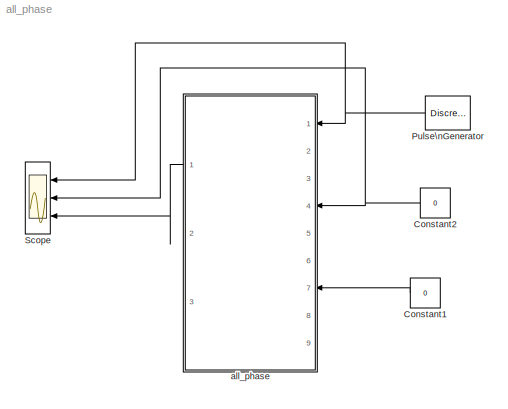
MODEL all_phase
KIND model
BLOCK [Constant] Constant1
  SID = 1
  Value = 0
BLOCK [Constant] Constant2
  SID = 2
  Value = 0
BLOCK [DiscretePulseGenerator] Pulse\nGenerator
  Amplitude = 100
  Period = 0.2
  Ports = [0, 1]
  PulseType = Time based
  PulseWidth = 50
  SID = 3
BLOCK [Scope] Scope
  Floating = off
  NumInputPorts = 3
  Ports = [3]
  SID = 4
  ScopeSpecificationString = C++SS(StrPVP('Location','[5, 60, 1029, 771]'),StrPVP('Open','off'),StrPVP('ZoomMode','xonly'),MxPVP('AxesTitles',54,'struct(''axes1'',''%<SignalLabel>'',''axes2'',''%<SignalLabel>'',''axes3'',''%<SignalLabel>'')'),StrPVP('YMin','-5~-5~-5'),StrPVP('YMax','5~5~5'),StrPVP('DataFormat','StructureWithTime'),StrPVP('LimitDataPoints','on'),StrPVP('Decimation','1'),StrPVP('BlockParamSampleInput','off'))
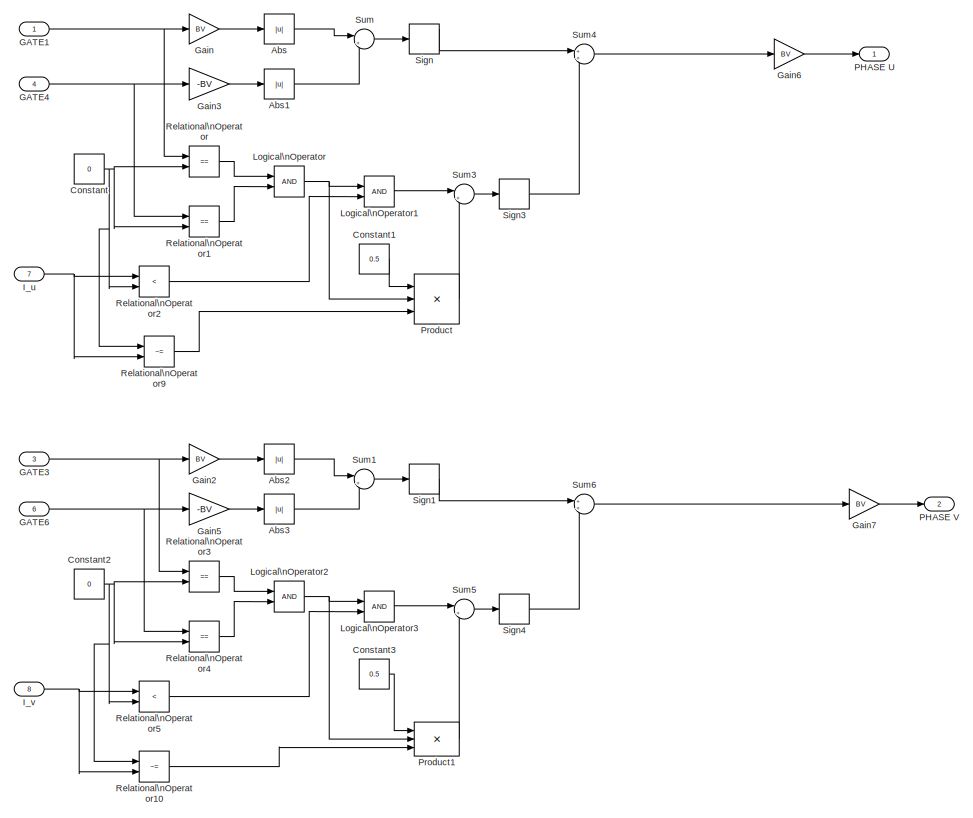
[diagram: all_phase - part 1/2, full width, middle band]
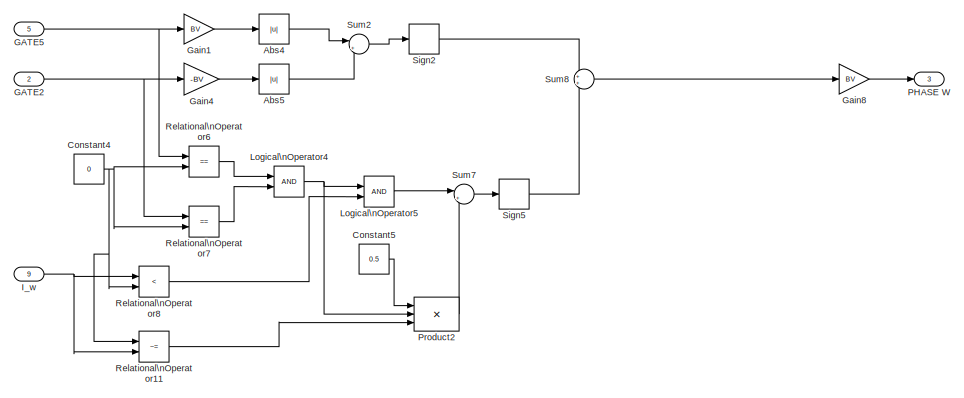
[diagram: all_phase - part 2/2, full width, bottom band]
BLOCK [SubSystem] all_phase
  Ports = [9, 3]
  RequestExecContextInheritance = off
  SID = 5
BLOCK [Abs] all_phase/Abs
  SID = 15
BLOCK [Abs] all_phase/Abs1
  SID = 16
BLOCK [Abs] all_phase/Abs2
  SID = 17
BLOCK [Abs] all_phase/Abs3
  SID = 18
BLOCK [Abs] all_phase/Abs4
  SID = 19
BLOCK [Abs] all_phase/Abs5
  SID = 20
BLOCK [Constant] all_phase/Constant
  SID = 21
  Value = 0
BLOCK [Constant] all_phase/Constant1
  SID = 22
  Value = 0.5
BLOCK [Constant] all_phase/Constant2
  SID = 23
  Value = 0
BLOCK [Constant] all_phase/Constant3
  SID = 24
  Value = 0.5
BLOCK [Constant] all_phase/Constant4
  SID = 25
  Value = 0
BLOCK [Constant] all_phase/Constant5
  SID = 26
  Value = 0.5
BLOCK [Inport] all_phase/GATE1
  IconDisplay = Port number
  SID = 6
BLOCK [Inport] all_phase/GATE2
  IconDisplay = Port number
  Port = 2
  SID = 7
BLOCK [Inport] all_phase/GATE3
  IconDisplay = Port number
  Port = 3
  SID = 8
BLOCK [Inport] all_phase/GATE4
  IconDisplay = Port number
  Port = 4
  SID = 9
BLOCK [Inport] all_phase/GATE5
  IconDisplay = Port number
  Port = 5
  SID = 10
BLOCK [Inport] all_phase/GATE6
  IconDisplay = Port number
  Port = 6
  SID = 11
BLOCK [Gain] all_phase/Gain
  Gain = BV
  SID = 27
BLOCK [Gain] all_phase/Gain1
  Gain = BV
  SID = 28
BLOCK [Gain] all_phase/Gain2
  Gain = BV
  SID = 29
BLOCK [Gain] all_phase/Gain3
  Gain = -BV
  SID = 30
BLOCK [Gain] all_phase/Gain4
  Gain = -BV
  SID = 31
BLOCK [Gain] all_phase/Gain5
  Gain = -BV
  SID = 32
BLOCK [Gain] all_phase/Gain6
  Gain = BV
  SID = 33
BLOCK [Gain] all_phase/Gain7
  Gain = BV
  SID = 34
BLOCK [Gain] all_phase/Gain8
  Gain = BV
  SID = 35
BLOCK [Inport] all_phase/I_u
  IconDisplay = Port number
  Port = 7
  SID = 12
BLOCK [Inport] all_phase/I_v
  IconDisplay = Port number
  Port = 8
  SID = 13
BLOCK [Inport] all_phase/I_w
  IconDisplay = Port number
  Port = 9
  SID = 14
BLOCK [Logic] all_phase/Logical\nOperator
  AllPortsSameDT = off
  Ports = [2, 1]
  SID = 36
BLOCK [Logic] all_phase/Logical\nOperator1
  AllPortsSameDT = off
  Ports = [2, 1]
  SID = 37
BLOCK [Logic] all_phase/Logical\nOperator2
  AllPortsSameDT = off
  Ports = [2, 1]
  SID = 38
BLOCK [Logic] all_phase/Logical\nOperator3
  AllPortsSameDT = off
  Ports = [2, 1]
  SID = 39
BLOCK [Logic] all_phase/Logical\nOperator4
  AllPortsSameDT = off
  Ports = [2, 1]
  SID = 40
BLOCK [Logic] all_phase/Logical\nOperator5
  AllPortsSameDT = off
  Ports = [2, 1]
  SID = 41
BLOCK [Outport] all_phase/PHASE U
  IconDisplay = Port number
  SID = 72
BLOCK [Outport] all_phase/PHASE V
  IconDisplay = Port number
  Port = 2
  SID = 73
BLOCK [Outport] all_phase/PHASE W
  IconDisplay = Port number
  Port = 3
  SID = 74
BLOCK [Product] all_phase/Product
  InputSameDT = off
  Inputs = 3
  Ports = [3, 1]
  RndMeth = Floor
  SID = 42
BLOCK [Product] all_phase/Product1
  InputSameDT = off
  Inputs = 3
  Ports = [3, 1]
  RndMeth = Floor
  SID = 43
BLOCK [Product] all_phase/Product2
  InputSameDT = off
  Inputs = 3
  Ports = [3, 1]
  RndMeth = Floor
  SID = 44
BLOCK [RelationalOperator] all_phase/Relational\nOperator
  InputSameDT = off
  Operator = ==
  Ports = [2, 1]
  SID = 45
BLOCK [RelationalOperator] all_phase/Relational\nOperator1
  InputSameDT = off
  Operator = ==
  Ports = [2, 1]
  SID = 46
BLOCK [RelationalOperator] all_phase/Relational\nOperator10
  InputSameDT = off
  Operator = ~=
  Ports = [2, 1]
  SID = 47
BLOCK [RelationalOperator] all_phase/Relational\nOperator11
  InputSameDT = off
  Operator = ~=
  Ports = [2, 1]
  SID = 48
BLOCK [RelationalOperator] all_phase/Relational\nOperator2
  InputSameDT = off
  Operator = <
  Ports = [2, 1]
  SID = 49
BLOCK [RelationalOperator] all_phase/Relational\nOperator3
  InputSameDT = off
  Operator = ==
  Ports = [2, 1]
  SID = 50
BLOCK [RelationalOperator] all_phase/Relational\nOperator4
  InputSameDT = off
  Operator = ==
  Ports = [2, 1]
  SID = 51
BLOCK [RelationalOperator] all_phase/Relational\nOperator5
  InputSameDT = off
  Operator = <
  Ports = [2, 1]
  SID = 52
BLOCK [RelationalOperator] all_phase/Relational\nOperator6
  InputSameDT = off
  Operator = ==
  Ports = [2, 1]
  SID = 53
BLOCK [RelationalOperator] all_phase/Relational\nOperator7
  InputSameDT = off
  Operator = ==
  Ports = [2, 1]
  SID = 54
BLOCK [RelationalOperator] all_phase/Relational\nOperator8
  InputSameDT = off
  Operator = <
  Ports = [2, 1]
  SID = 55
BLOCK [RelationalOperator] all_phase/Relational\nOperator9
  InputSameDT = off
  Operator = ~=
  Ports = [2, 1]
  SID = 56
BLOCK [Signum] all_phase/Sign
  SID = 57
BLOCK [Signum] all_phase/Sign1
  SID = 58
BLOCK [Signum] all_phase/Sign2
  SID = 59
BLOCK [Signum] all_phase/Sign3
  SID = 60
BLOCK [Signum] all_phase/Sign4
  SID = 61
BLOCK [Signum] all_phase/Sign5
  SID = 62
BLOCK [Sum] all_phase/Sum
  IconShape = round
  Inputs = |+-
  Ports = [2, 1]
  SID = 63
BLOCK [Sum] all_phase/Sum1
  IconShape = round
  Inputs = |+-
  Ports = [2, 1]
  SID = 64
BLOCK [Sum] all_phase/Sum2
  IconShape = round
  Inputs = |+-
  Ports = [2, 1]
  SID = 65
BLOCK [Sum] all_phase/Sum3
  IconShape = round
  Inputs = |+-
  Ports = [2, 1]
  SID = 66
BLOCK [Sum] all_phase/Sum4
  IconShape = round
  Ports = [2, 1]
  SID = 67
BLOCK [Sum] all_phase/Sum5
  IconShape = round
  Inputs = |+-
  Ports = [2, 1]
  SID = 68
BLOCK [Sum] all_phase/Sum6
  IconShape = round
  Ports = [2, 1]
  SID = 69
BLOCK [Sum] all_phase/Sum7
  IconShape = round
  Inputs = |+-
  Ports = [2, 1]
  SID = 70
BLOCK [Sum] all_phase/Sum8
  IconShape = round
  Ports = [2, 1]
  SID = 71
LINE Constant1:1 -> all_phase:7
NET Constant2:1 -> Scope:2, all_phase:4
NET Pulse\nGenerator:1 -> Scope:1, all_phase:1
LINE all_phase/Abs1:1 -> all_phase/Sum:2
LINE all_phase/Abs2:1 -> all_phase/Sum1:1
LINE all_phase/Abs3:1 -> all_phase/Sum1:2
LINE all_phase/Abs4:1 -> all_phase/Sum2:1
LINE all_phase/Abs5:1 -> all_phase/Sum2:2
LINE all_phase/Abs:1 -> all_phase/Sum:1
LINE all_phase/Constant1:1 -> all_phase/Product:1
NET all_phase/Constant2:1 -> all_phase/Relational\nOperator10:1, all_phase/Relational\nOperator3:2, all_phase/Relational\nOperator4:2, all_phase/Relational\nOperator5:2
LINE all_phase/Constant3:1 -> all_phase/Product1:1
NET all_phase/Constant4:1 -> all_phase/Relational\nOperator11:1, all_phase/Relational\nOperator6:2, all_phase/Relational\nOperator7:2, all_phase/Relational\nOperator8:2
LINE all_phase/Constant5:1 -> all_phase/Product2:1
NET all_phase/Constant:1 -> all_phase/Relational\nOperator1:2, all_phase/Relational\nOperator2:2, all_phase/Relational\nOperator9:1, all_phase/Relational\nOperator:2
NET all_phase/GATE1:1 -> all_phase/Gain:1, all_phase/Relational\nOperator:1
NET all_phase/GATE2:1 -> all_phase/Gain4:1, all_phase/Relational\nOperator7:1
NET all_phase/GATE3:1 -> all_phase/Gain2:1, all_phase/Relational\nOperator3:1
NET all_phase/GATE4:1 -> all_phase/Gain3:1, all_phase/Relational\nOperator1:1
NET all_phase/GATE5:1 -> all_phase/Gain1:1, all_phase/Relational\nOperator6:1
NET all_phase/GATE6:1 -> all_phase/Gain5:1, all_phase/Relational\nOperator4:1
LINE all_phase/Gain1:1 -> all_phase/Abs4:1
LINE all_phase/Gain2:1 -> all_phase/Abs2:1
LINE all_phase/Gain3:1 -> all_phase/Abs1:1
LINE all_phase/Gain4:1 -> all_phase/Abs5:1
LINE all_phase/Gain5:1 -> all_phase/Abs3:1
LINE all_phase/Gain6:1 -> all_phase/PHASE U:1
LINE all_phase/Gain7:1 -> all_phase/PHASE V:1
LINE all_phase/Gain8:1 -> all_phase/PHASE W:1
LINE all_phase/Gain:1 -> all_phase/Abs:1
NET all_phase/I_u:1 -> all_phase/Relational\nOperator2:1, all_phase/Relational\nOperator9:2
NET all_phase/I_v:1 -> all_phase/Relational\nOperator10:2, all_phase/Relational\nOperator5:1
NET all_phase/I_w:1 -> all_phase/Relational\nOperator11:2, all_phase/Relational\nOperator8:1
LINE all_phase/Logical\nOperator1:1 -> all_phase/Sum3:1
NET all_phase/Logical\nOperator2:1 -> all_phase/Logical\nOperator3:1, all_phase/Product1:2
LINE all_phase/Logical\nOperator3:1 -> all_phase/Sum5:1
NET all_phase/Logical\nOperator4:1 -> all_phase/Logical\nOperator5:1, all_phase/Product2:2
LINE all_phase/Logical\nOperator5:1 -> all_phase/Sum7:1
NET all_phase/Logical\nOperator:1 -> all_phase/Logical\nOperator1:1, all_phase/Product:2
LINE all_phase/Product1:1 -> all_phase/Sum5:2
LINE all_phase/Product2:1 -> all_phase/Sum7:2
LINE all_phase/Product:1 -> all_phase/Sum3:2
LINE all_phase/Relational\nOperator10:1 -> all_phase/Product1:3
LINE all_phase/Relational\nOperator11:1 -> all_phase/Product2:3
LINE all_phase/Relational\nOperator1:1 -> all_phase/Logical\nOperator:2
LINE all_phase/Relational\nOperator2:1 -> all_phase/Logical\nOperator1:2
LINE all_phase/Relational\nOperator3:1 -> all_phase/Logical\nOperator2:1
LINE all_phase/Relational\nOperator4:1 -> all_phase/Logical\nOperator2:2
LINE all_phase/Relational\nOperator5:1 -> all_phase/Logical\nOperator3:2
LINE all_phase/Relational\nOperator6:1 -> all_phase/Logical\nOperator4:1
LINE all_phase/Relational\nOperator7:1 -> all_phase/Logical\nOperator4:2
LINE all_phase/Relational\nOperator8:1 -> all_phase/Logical\nOperator5:2
LINE all_phase/Relational\nOperator9:1 -> all_phase/Product:3
LINE all_phase/Relational\nOperator:1 -> all_phase/Logical\nOperator:1
LINE all_phase/Sign1:1 -> all_phase/Sum6:1
LINE all_phase/Sign2:1 -> all_phase/Sum8:1
LINE all_phase/Sign3:1 -> all_phase/Sum4:2
LINE all_phase/Sign4:1 -> all_phase/Sum6:2
LINE all_phase/Sign5:1 -> all_phase/Sum8:2
LINE all_phase/Sign:1 -> all_phase/Sum4:1
LINE all_phase/Sum1:1 -> all_phase/Sign1:1
LINE all_phase/Sum2:1 -> all_phase/Sign2:1
LINE all_phase/Sum3:1 -> all_phase/Sign3:1
LINE all_phase/Sum4:1 -> all_phase/Gain6:1
LINE all_phase/Sum5:1 -> all_phase/Sign4:1
LINE all_phase/Sum6:1 -> all_phase/Gain7:1
LINE all_phase/Sum7:1 -> all_phase/Sign5:1
LINE all_phase/Sum8:1 -> all_phase/Gain8:1
LINE all_phase/Sum:1 -> all_phase/Sign:1
LINE all_phase:1 -> Scope:3
note: NET lines group one-source signal fan-out (src -> all destinations, sorted); 1:1 wires keep LINE
